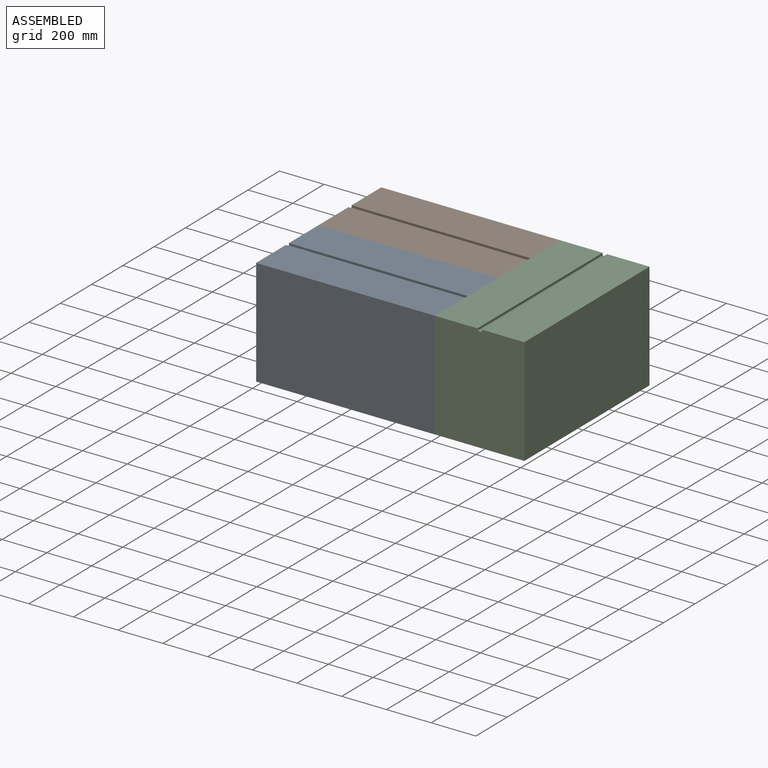
[diagram: assembled view]
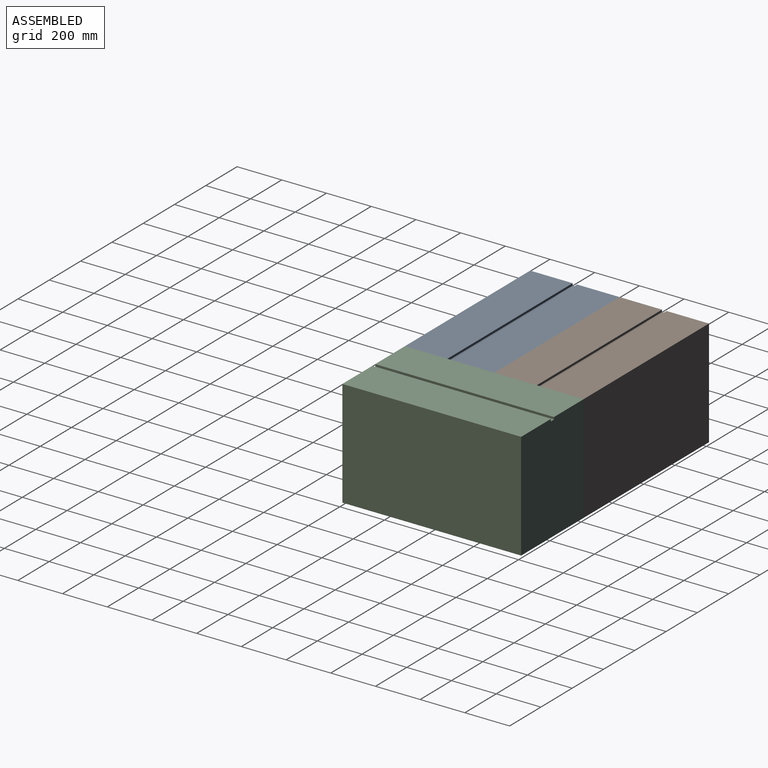
[diagram: assembled view, second angle]
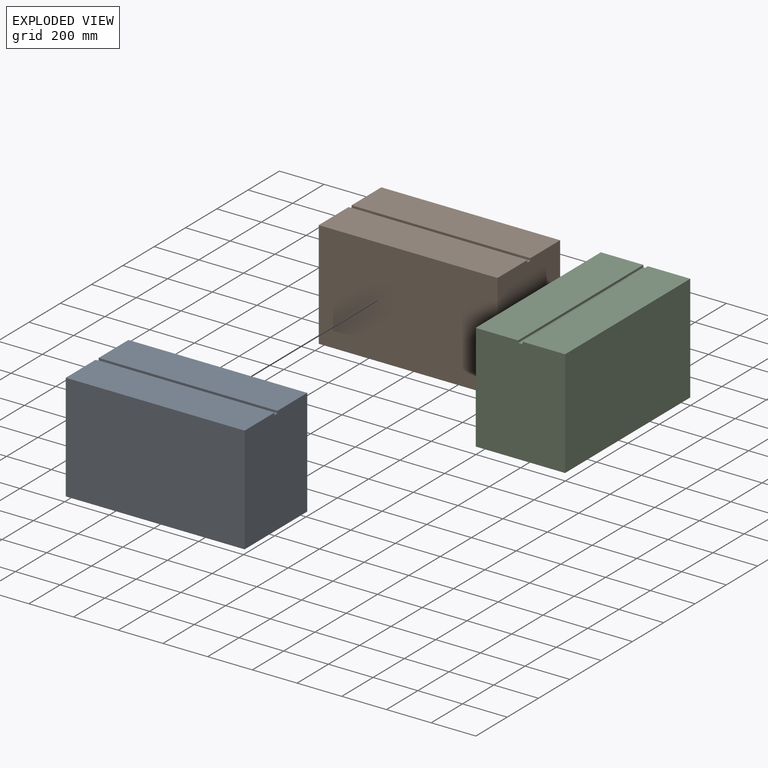
[diagram: exploded view]
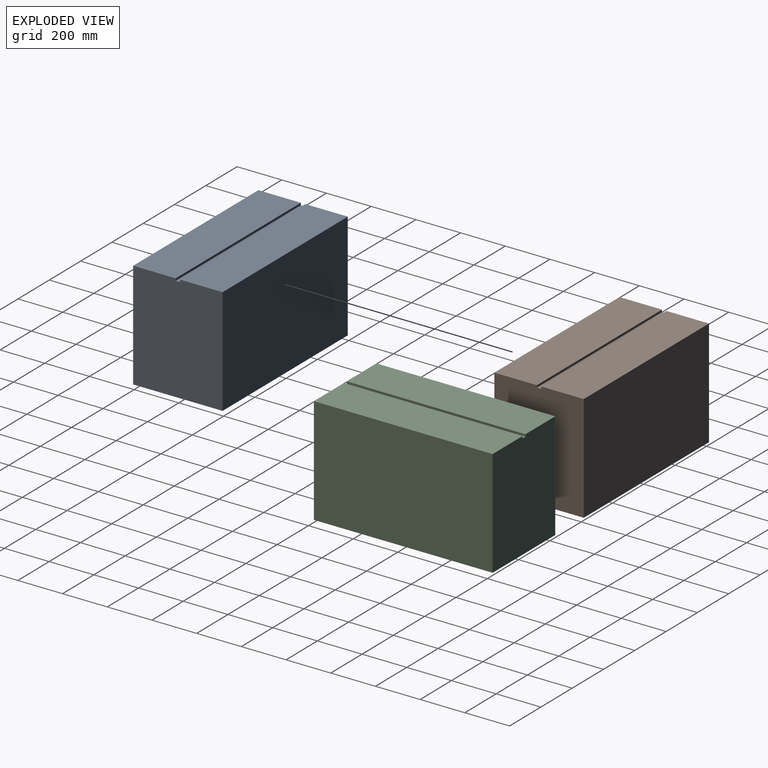
[diagram: exploded view, second angle]
ASSEMBLY  parts=3 mates=2
PART A: 10 faces, bbox 800x400x480 mm
  f0: plane 800x190mm, normal (0,0,1), area 152000mm2, adj f1,f2,f3,f8
  f1: plane 480x400mm, normal (-1,0,0), area 191800mm2, adj f0,f3,f4,f5,f6,f7,f8,f9
  f2: plane 480x400mm, normal (1,0,0), area 191800mm2, adj f0,f3,f4,f5,f6,f7,f8,f9
  f3: plane 800x480mm, normal (0,-1,0), area 384000mm2, adj f0,f1,f2,f4
  f4: plane 800x400mm, normal (0,0,-1), area 320000mm2, adj f1,f2,f3,f5
  f5: plane 800x480mm, normal (0,1,0), area 384000mm2, adj f1,f2,f4,f6
  f6: plane 800x190mm, normal (0,0,1), area 152000mm2, adj f1,f2,f5,f7
  f7: plane 800x10mm, normal (0,-1,0), area 8000mm2, adj f1,f2,f6,f9
  f8: plane 800x10mm, normal (0,1,0), area 8000mm2, adj f0,f1,f2,f9
  f9: plane 800x20mm, normal (0,0,1), area 16000mm2, adj f1,f2,f7,f8
PART B: same geometry as A
PART C: same geometry as A
PLACE A t=(405.48,-23.75,-88.4)mm fixed
PLACE B t=(405.48,376.25,-88.4)mm
PLACE C rot(axis=(0,0,-1),90deg) t=(566.09,-184.36,-88.4)mm
MATE parallel C.f3 <-> A.f2  axis (-1,0,0) through (405.48,-184.36,15.16)mm
MATE fastened B.f3 <-> A.f5  axis (0,-1,0) through (405.48,215.64,-224.84)mm
